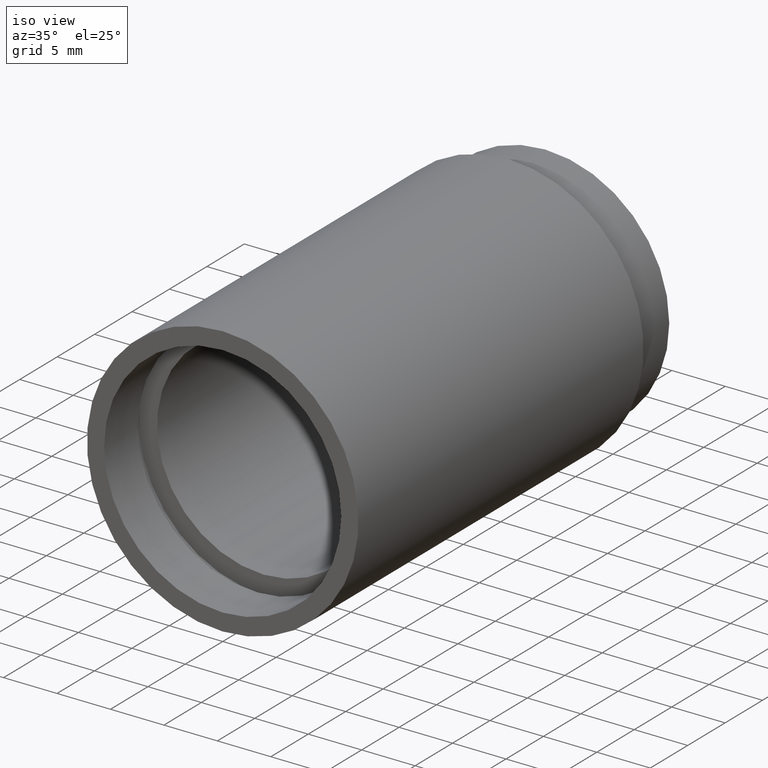
[diagram: clean part render]
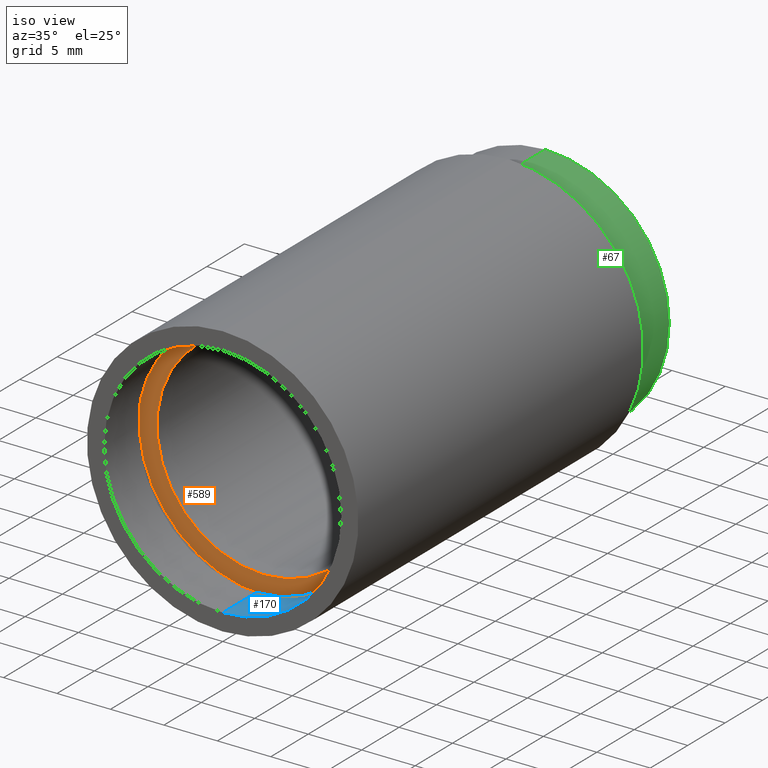
[diagram: same view with three faces highlighted in distinct colors, each labeled with its STEP entity id]
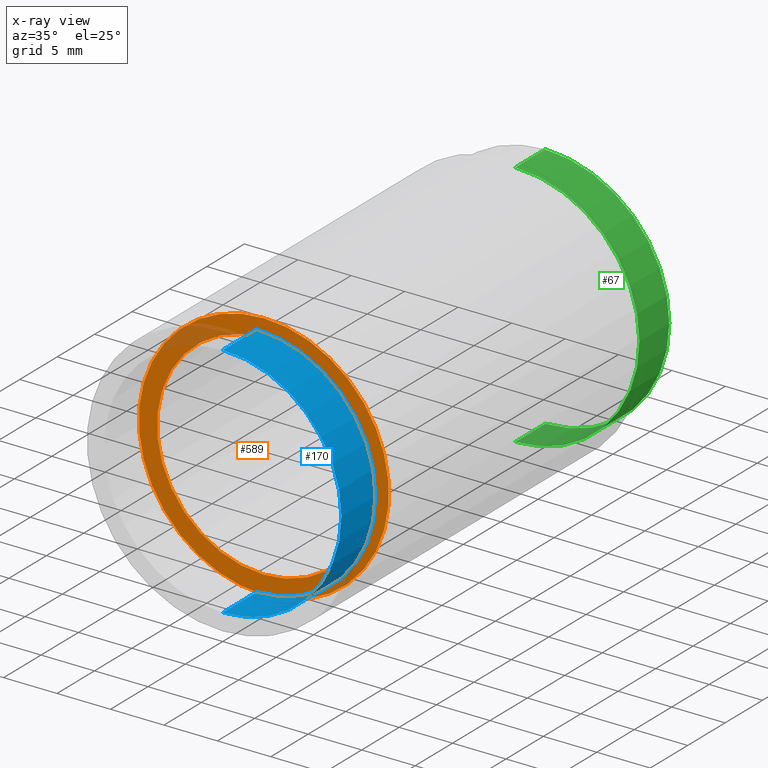
[diagram: x-ray of the same camera — body ghosted, the three highlighted faces saturated]
A machine part, iso view with three faces highlighted in distinct colors.
The next image is the same camera in x-ray (body ghosted, the three faces saturated) — at least one of them is partly hidden behind the body in this view.
Their STEP definitions:

[orange] entity #589 — the highlighted planar face has unit normal (-0, 1, 0).
#4 = EDGE_LOOP ( 'NONE', ( #139, #241 ) ) ;
#33 = DIRECTION ( 'NONE',  ( -0.0000000000000000000, 1.000000000000000000, -0.0000000000000000000 ) ) ;
#72 = CIRCLE ( 'NONE', #465, 11.70000000000001900 ) ;
#75 = DIRECTION ( 'NONE',  ( -0.0000000000000000000, 1.000000000000000000, 0.0000000000000000000 ) ) ;
#86 = CARTESIAN_POINT ( 'NONE',  ( 0.0000000000000000000, 5.499999999999976900, 0.0000000000000000000 ) ) ;
#105 = EDGE_CURVE ( 'NONE', #267, #484, #223, .T. ) ;
#126 = DIRECTION ( 'NONE',  ( 0.0000000000000000000, 0.0000000000000000000, 1.000000000000000000 ) ) ;
#135 = DIRECTION ( 'NONE',  ( 0.0000000000000000000, 0.0000000000000000000, 1.000000000000000000 ) ) ;
#139 = ORIENTED_EDGE ( 'NONE', *, *, #438, .T. ) ;
#140 = DIRECTION ( 'NONE',  ( -0.0000000000000000000, 1.000000000000000000, -0.0000000000000000000 ) ) ;
#148 = EDGE_CURVE ( 'NONE', #484, #267, #72, .T. ) ;
#162 = EDGE_CURVE ( 'NONE', #393, #207, #620, .T. ) ;
#166 = CARTESIAN_POINT ( 'NONE',  ( 0.0000000000000000000, 5.499999999999976900, 0.0000000000000000000 ) ) ;
#187 = DIRECTION ( 'NONE',  ( -0.0000000000000000000, 1.000000000000000000, -0.0000000000000000000 ) ) ;
#194 = DIRECTION ( 'NONE',  ( 0.0000000000000000000, 0.0000000000000000000, 1.000000000000000000 ) ) ;
#203 = AXIS2_PLACEMENT_3D ( 'NONE', #558, #140, #135 ) ;
#207 = VERTEX_POINT ( 'NONE', #295 ) ;
#223 = CIRCLE ( 'NONE', #203, 11.70000000000001900 ) ;
#241 = ORIENTED_EDGE ( 'NONE', *, *, #162, .T. ) ;
#259 = DIRECTION ( 'NONE',  ( -0.0000000000000000000, 1.000000000000000000, -0.0000000000000000000 ) ) ;
#261 = CARTESIAN_POINT ( 'NONE',  ( 0.0000000000000000000, 5.499999999999976900, 11.70000000000001900 ) ) ;
#267 = VERTEX_POINT ( 'NONE', #581 ) ;
#288 = AXIS2_PLACEMENT_3D ( 'NONE', #86, #187, #515 ) ;
#295 = CARTESIAN_POINT ( 'NONE',  ( 0.0000000000000000000, 5.499999999999976900, 10.00000000000002000 ) ) ;
#331 = FACE_OUTER_BOUND ( 'NONE', #368, .T. ) ;
#348 = CARTESIAN_POINT ( 'NONE',  ( 1.224646799147355400E-015, 5.499999999999976900, -10.00000000000002000 ) ) ;
#350 = ORIENTED_EDGE ( 'NONE', *, *, #148, .F. ) ;
#365 = AXIS2_PLACEMENT_3D ( 'NONE', #417, #75, #126 ) ;
#368 = EDGE_LOOP ( 'NONE', ( #350, #532 ) ) ;
#393 = VERTEX_POINT ( 'NONE', #348 ) ;
#406 = PLANE ( 'NONE',  #365 ) ;
#417 = CARTESIAN_POINT ( 'NONE',  ( 11.70000000000001900, 5.499999999999982200, 0.0000000000000000000 ) ) ;
#437 = FACE_BOUND ( 'NONE', #4, .T. ) ;
#438 = EDGE_CURVE ( 'NONE', #207, #393, #471, .T. ) ;
#465 = AXIS2_PLACEMENT_3D ( 'NONE', #467, #33, #194 ) ;
#467 = CARTESIAN_POINT ( 'NONE',  ( 0.0000000000000000000, 5.499999999999976900, 0.0000000000000000000 ) ) ;
#471 = CIRCLE ( 'NONE', #622, 10.00000000000002000 ) ;
#484 = VERTEX_POINT ( 'NONE', #261 ) ;
#496 = DIRECTION ( 'NONE',  ( 0.0000000000000000000, 0.0000000000000000000, 1.000000000000000000 ) ) ;
#515 = DIRECTION ( 'NONE',  ( 0.0000000000000000000, 0.0000000000000000000, 1.000000000000000000 ) ) ;
#532 = ORIENTED_EDGE ( 'NONE', *, *, #105, .F. ) ;
#558 = CARTESIAN_POINT ( 'NONE',  ( 0.0000000000000000000, 5.499999999999976900, 0.0000000000000000000 ) ) ;
#581 = CARTESIAN_POINT ( 'NONE',  ( 1.432836755002405700E-015, 5.499999999999976900, -11.70000000000001900 ) ) ;
#589 = ADVANCED_FACE ( 'NONE', ( #331, #437 ), #406, .F. ) ;
#620 = CIRCLE ( 'NONE', #288, 10.00000000000002000 ) ;
#622 = AXIS2_PLACEMENT_3D ( 'NONE', #166, #259, #496 ) ;

[blue] entity #170 — the highlighted cylindrical surface (partial cylindrical patch) has radius 11.1 mm, axis along (-0, 1, -0).
#2 = VERTEX_POINT ( 'NONE', #413 ) ;
#9 = CARTESIAN_POINT ( 'NONE',  ( 0.0000000000000000000, 161.3761669434274500, 11.10000000000001700 ) ) ;
#12 = LINE ( 'NONE', #9, #136 ) ;
#14 = CARTESIAN_POINT ( 'NONE',  ( 0.0000000000000000000, 4.499999999999976000, 11.10000000000001700 ) ) ;
#38 = CARTESIAN_POINT ( 'NONE',  ( 0.0000000000000000000, -2.775557561562891400E-014, 11.10000000000001700 ) ) ;
#43 = ORIENTED_EDGE ( 'NONE', *, *, #304, .F. ) ;
#74 = EDGE_CURVE ( 'NONE', #164, #2, #472, .T. ) ;
#82 = ORIENTED_EDGE ( 'NONE', *, *, #332, .T. ) ;
#108 = DIRECTION ( 'NONE',  ( 0.0000000000000000000, 0.0000000000000000000, 1.000000000000000000 ) ) ;
#124 = CARTESIAN_POINT ( 'NONE',  ( 0.0000000000000000000, -2.775557561562891400E-014, 0.0000000000000000000 ) ) ;
#127 = DIRECTION ( 'NONE',  ( 0.0000000000000000000, 0.0000000000000000000, 1.000000000000000000 ) ) ;
#136 = VECTOR ( 'NONE', #161, 1000.000000000000000 ) ;
#161 = DIRECTION ( 'NONE',  ( -0.0000000000000000000, 1.000000000000000000, -0.0000000000000000000 ) ) ;
#164 = VERTEX_POINT ( 'NONE', #38 ) ;
#170 = ADVANCED_FACE ( 'NONE', ( #601 ), #375, .F. ) ;
#172 = LINE ( 'NONE', #571, #385 ) ;
#179 = CARTESIAN_POINT ( 'NONE',  ( 1.359357947053564100E-015, 4.499999999999976000, -11.10000000000001700 ) ) ;
#235 = DIRECTION ( 'NONE',  ( -0.0000000000000000000, 1.000000000000000000, -0.0000000000000000000 ) ) ;
#244 = AXIS2_PLACEMENT_3D ( 'NONE', #528, #618, #108 ) ;
#248 = ORIENTED_EDGE ( 'NONE', *, *, #74, .F. ) ;
#294 = DIRECTION ( 'NONE',  ( -0.0000000000000000000, 1.000000000000000000, -0.0000000000000000000 ) ) ;
#304 = EDGE_CURVE ( 'NONE', #2, #588, #172, .T. ) ;
#332 = EDGE_CURVE ( 'NONE', #387, #588, #513, .T. ) ;
#351 = ORIENTED_EDGE ( 'NONE', *, *, #399, .T. ) ;
#375 = CYLINDRICAL_SURFACE ( 'NONE', #489, 11.10000000000001700 ) ;
#385 = VECTOR ( 'NONE', #294, 1000.000000000000000 ) ;
#387 = VERTEX_POINT ( 'NONE', #14 ) ;
#392 = DIRECTION ( 'NONE',  ( 0.0000000000000000000, 0.0000000000000000000, 1.000000000000000000 ) ) ;
#399 = EDGE_CURVE ( 'NONE', #164, #387, #12, .T. ) ;
#413 = CARTESIAN_POINT ( 'NONE',  ( 1.359357947053564100E-015, -2.775557561562891400E-014, -11.10000000000001700 ) ) ;
#454 = AXIS2_PLACEMENT_3D ( 'NONE', #124, #457, #127 ) ;
#457 = DIRECTION ( 'NONE',  ( -0.0000000000000000000, 1.000000000000000000, -0.0000000000000000000 ) ) ;
#472 = CIRCLE ( 'NONE', #454, 11.10000000000001700 ) ;
#489 = AXIS2_PLACEMENT_3D ( 'NONE', #563, #235, #392 ) ;
#497 = EDGE_LOOP ( 'NONE', ( #43, #248, #351, #82 ) ) ;
#513 = CIRCLE ( 'NONE', #244, 11.10000000000001700 ) ;
#528 = CARTESIAN_POINT ( 'NONE',  ( 0.0000000000000000000, 4.499999999999976000, 0.0000000000000000000 ) ) ;
#563 = CARTESIAN_POINT ( 'NONE',  ( 0.0000000000000000000, 161.3761669434274500, 0.0000000000000000000 ) ) ;
#571 = CARTESIAN_POINT ( 'NONE',  ( 1.359357947053564100E-015, 161.3761669434274500, -11.10000000000001700 ) ) ;
#588 = VERTEX_POINT ( 'NONE', #179 ) ;
#601 = FACE_OUTER_BOUND ( 'NONE', #497, .T. ) ;
#618 = DIRECTION ( 'NONE',  ( -0.0000000000000000000, 1.000000000000000000, -0.0000000000000000000 ) ) ;

[green] entity #67 — the highlighted cylindrical surface (partial cylindrical patch) has radius 11.6 mm, axis along (-0, 1, -0).
#37 = EDGE_CURVE ( 'NONE', #185, #299, #305, .T. ) ;
#66 = EDGE_CURVE ( 'NONE', #185, #621, #198, .T. ) ;
#67 = ADVANCED_FACE ( 'NONE', ( #603 ), #174, .T. ) ;
#87 = DIRECTION ( 'NONE',  ( -0.0000000000000000000, 1.000000000000000000, -0.0000000000000000000 ) ) ;
#134 = EDGE_CURVE ( 'NONE', #299, #449, #315, .T. ) ;
#153 = AXIS2_PLACEMENT_3D ( 'NONE', #405, #224, #363 ) ;
#169 = CARTESIAN_POINT ( 'NONE',  ( 0.0000000000000000000, 161.3761669434274500, 11.60000000000001400 ) ) ;
#174 = CYLINDRICAL_SURFACE ( 'NONE', #153, 11.60000000000001400 ) ;
#185 = VERTEX_POINT ( 'NONE', #578 ) ;
#198 = LINE ( 'NONE', #169, #594 ) ;
#219 = DIRECTION ( 'NONE',  ( -0.0000000000000000000, 1.000000000000000000, -0.0000000000000000000 ) ) ;
#224 = DIRECTION ( 'NONE',  ( -0.0000000000000000000, 1.000000000000000000, -0.0000000000000000000 ) ) ;
#291 = ORIENTED_EDGE ( 'NONE', *, *, #507, .F. ) ;
#299 = VERTEX_POINT ( 'NONE', #394 ) ;
#301 = DIRECTION ( 'NONE',  ( 0.0000000000000000000, 0.0000000000000000000, 1.000000000000000000 ) ) ;
#305 = CIRCLE ( 'NONE', #391, 11.60000000000001400 ) ;
#315 = LINE ( 'NONE', #334, #530 ) ;
#320 = CARTESIAN_POINT ( 'NONE',  ( 0.0000000000000000000, 39.09999999999999400, 0.0000000000000000000 ) ) ;
#334 = CARTESIAN_POINT ( 'NONE',  ( 1.420590287010931300E-015, 161.3761669434274500, -11.60000000000001400 ) ) ;
#363 = DIRECTION ( 'NONE',  ( 0.0000000000000000000, 0.0000000000000000000, 1.000000000000000000 ) ) ;
#377 = EDGE_LOOP ( 'NONE', ( #566, #473, #291, #508 ) ) ;
#391 = AXIS2_PLACEMENT_3D ( 'NONE', #320, #452, #557 ) ;
#394 = CARTESIAN_POINT ( 'NONE',  ( 1.420590287010931300E-015, 39.09999999999999400, -11.60000000000001400 ) ) ;
#398 = CARTESIAN_POINT ( 'NONE',  ( 1.420590287010931300E-015, 43.10000000000000100, -11.60000000000001400 ) ) ;
#405 = CARTESIAN_POINT ( 'NONE',  ( 0.0000000000000000000, 161.3761669434274500, 0.0000000000000000000 ) ) ;
#429 = AXIS2_PLACEMENT_3D ( 'NONE', #494, #219, #301 ) ;
#449 = VERTEX_POINT ( 'NONE', #398 ) ;
#451 = CIRCLE ( 'NONE', #429, 11.60000000000001400 ) ;
#452 = DIRECTION ( 'NONE',  ( -0.0000000000000000000, 1.000000000000000000, -0.0000000000000000000 ) ) ;
#473 = ORIENTED_EDGE ( 'NONE', *, *, #134, .T. ) ;
#494 = CARTESIAN_POINT ( 'NONE',  ( 0.0000000000000000000, 43.10000000000000100, 0.0000000000000000000 ) ) ;
#507 = EDGE_CURVE ( 'NONE', #621, #449, #451, .T. ) ;
#508 = ORIENTED_EDGE ( 'NONE', *, *, #66, .F. ) ;
#530 = VECTOR ( 'NONE', #87, 1000.000000000000000 ) ;
#551 = DIRECTION ( 'NONE',  ( -0.0000000000000000000, 1.000000000000000000, -0.0000000000000000000 ) ) ;
#553 = CARTESIAN_POINT ( 'NONE',  ( 0.0000000000000000000, 43.10000000000000100, 11.60000000000001400 ) ) ;
#557 = DIRECTION ( 'NONE',  ( 0.0000000000000000000, 0.0000000000000000000, 1.000000000000000000 ) ) ;
#566 = ORIENTED_EDGE ( 'NONE', *, *, #37, .T. ) ;
#578 = CARTESIAN_POINT ( 'NONE',  ( 0.0000000000000000000, 39.09999999999999400, 11.60000000000001400 ) ) ;
#594 = VECTOR ( 'NONE', #551, 1000.000000000000000 ) ;
#603 = FACE_OUTER_BOUND ( 'NONE', #377, .T. ) ;
#621 = VERTEX_POINT ( 'NONE', #553 ) ;